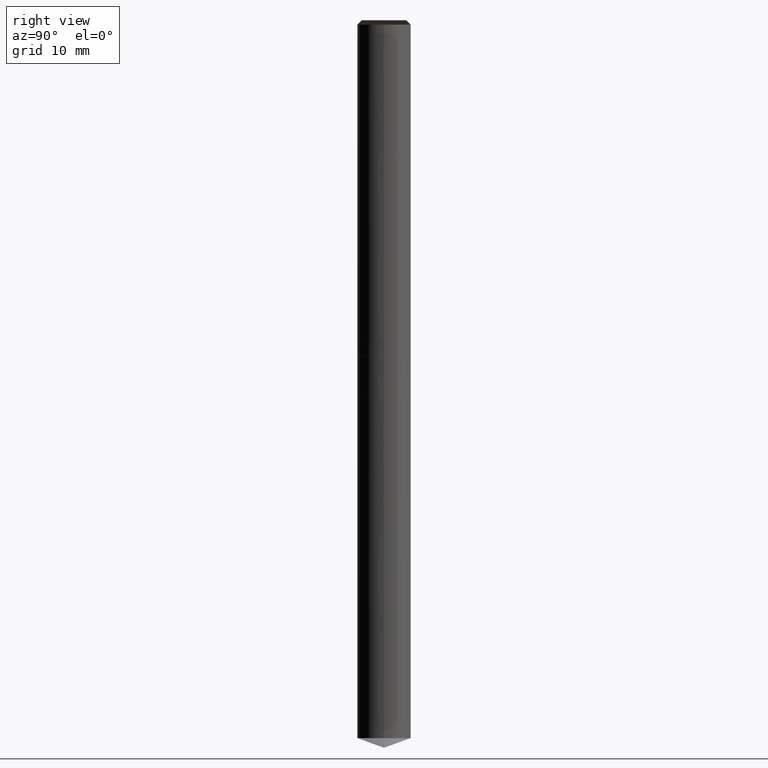
[diagram: clean part render]
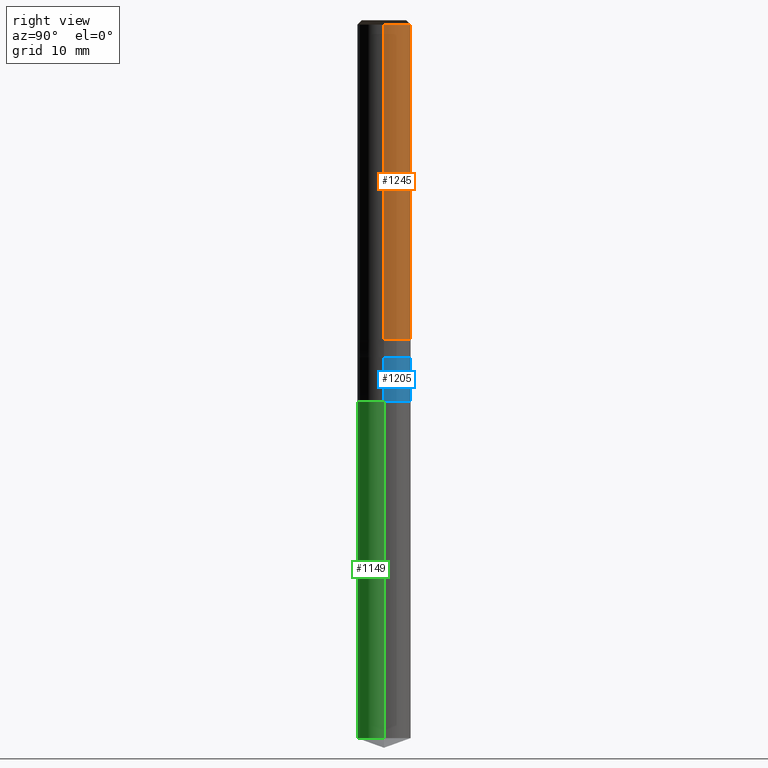
[diagram: same view with three faces highlighted in distinct colors, each labeled with its STEP entity id]
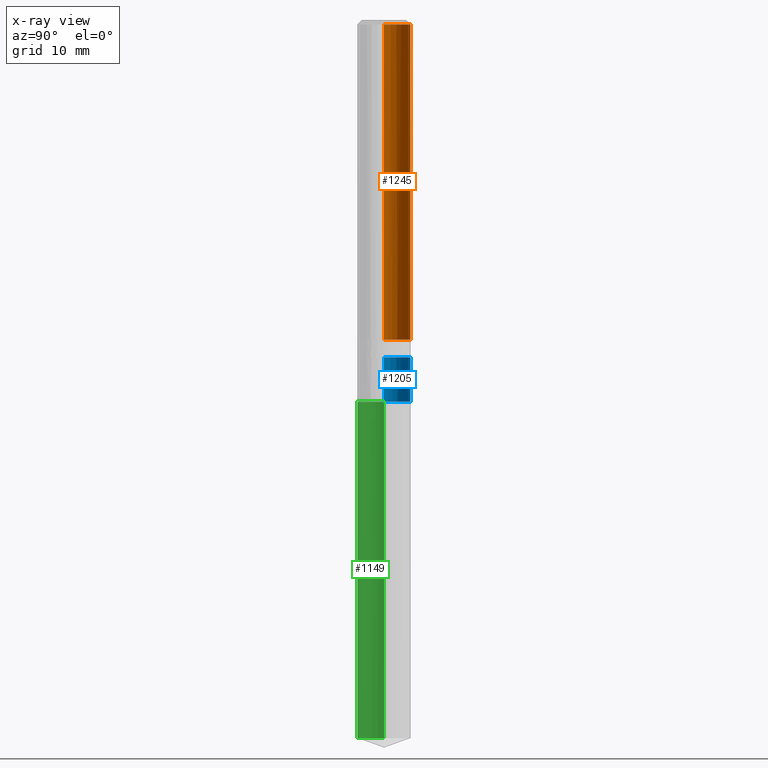
[diagram: x-ray of the same camera — body ghosted, the three highlighted faces saturated]
A machine part, right view with three faces highlighted in distinct colors.
The next image is the same camera in x-ray (body ghosted, the three faces saturated) — at least one of them is partly hidden behind the body in this view.
Their STEP definitions:

[orange] entity #1245 — the highlighted face is a freeform B-spline surface patch.
#1029=CARTESIAN_POINT('',(3.0,0.0,0.0));
#1030=CARTESIAN_POINT('',(3.0,3.0,0.0));
#1031=CARTESIAN_POINT('',(0.0,3.0,0.0));
#1032=CARTESIAN_POINT('',(-3.0,3.0,0.0));
#1033=CARTESIAN_POINT('',(-3.0,0.0,0.0));
#1034=CARTESIAN_POINT('',(3.0,0.0,35.5));
#1035=CARTESIAN_POINT('',(3.0,3.0,35.5));
#1036=CARTESIAN_POINT('',(0.0,3.0,35.5));
#1037=CARTESIAN_POINT('',(-3.0,3.0,35.5));
#1038=CARTESIAN_POINT('',(-3.0,0.0,35.5));
#1226=(
BOUNDED_SURFACE()
B_SPLINE_SURFACE(1,2,(
(#1029,#1030,#1031,#1032,#1033),
(#1034,#1035,#1036,#1037,#1038)
), .UNSPECIFIED.,.F.,.F.,.F.)
B_SPLINE_SURFACE_WITH_KNOTS((2,2),(3,2,3),(
0.0,1.0),(
0.0,0.5,1.0), .UNSPECIFIED.)
GEOMETRIC_REPRESENTATION_ITEM()
RATIONAL_B_SPLINE_SURFACE(((1.0,0.707106781187,1.0,0.707106781187,1.0),
(1.0,0.707106781187,1.0,0.707106781187,1.0)
))
REPRESENTATION_ITEM('')
SURFACE()
);
#1227=(
BOUNDED_CURVE()
B_SPLINE_CURVE(2,(#1033,#1032,#1031,#1030,#1029),.UNSPECIFIED.,.F.,.F.)
B_SPLINE_CURVE_WITH_KNOTS((3,2,3),
(0.0,0.5,1.0),.UNSPECIFIED.)
CURVE()
GEOMETRIC_REPRESENTATION_ITEM()
RATIONAL_B_SPLINE_CURVE((1.0,0.707106781187,1.0,0.707106781187,1.0))
REPRESENTATION_ITEM('')
);
#1228=(
BOUNDED_CURVE()
B_SPLINE_CURVE(1,(#1029,#1034),.UNSPECIFIED.,.F.,.F.)
B_SPLINE_CURVE_WITH_KNOTS((2,2),
(0.0,1.0),.UNSPECIFIED.)
CURVE()
GEOMETRIC_REPRESENTATION_ITEM()
RATIONAL_B_SPLINE_CURVE((1.0,1.0))
REPRESENTATION_ITEM('')
);
#1229=(
BOUNDED_CURVE()
B_SPLINE_CURVE(2,(#1034,#1035,#1036,#1037,#1038),.UNSPECIFIED.,.F.,.F.)
B_SPLINE_CURVE_WITH_KNOTS((3,2,3),
(0.0,0.5,1.0),.UNSPECIFIED.)
CURVE()
GEOMETRIC_REPRESENTATION_ITEM()
RATIONAL_B_SPLINE_CURVE((1.0,0.707106781187,1.0,0.707106781187,1.0))
REPRESENTATION_ITEM('')
);
#1230=(
BOUNDED_CURVE()
B_SPLINE_CURVE(1,(#1038,#1033),.UNSPECIFIED.,.F.,.F.)
B_SPLINE_CURVE_WITH_KNOTS((2,2),
(0.0,1.0),.UNSPECIFIED.)
CURVE()
GEOMETRIC_REPRESENTATION_ITEM()
RATIONAL_B_SPLINE_CURVE((1.0,1.0))
REPRESENTATION_ITEM('')
);
#1231=VERTEX_POINT('',#1029);
#1232=VERTEX_POINT('',#1033);
#1233=VERTEX_POINT('',#1034);
#1234=VERTEX_POINT('',#1038);
#1235=EDGE_CURVE('',#1232,#1231,#1227,.T.);
#1236=EDGE_CURVE('',#1231,#1233,#1228,.T.);
#1237=EDGE_CURVE('',#1233,#1234,#1229,.T.);
#1238=EDGE_CURVE('',#1234,#1232,#1230,.T.);
#1239=ORIENTED_EDGE('',*,*,#1235,.T.);
#1240=ORIENTED_EDGE('',*,*,#1236,.T.);
#1241=ORIENTED_EDGE('',*,*,#1237,.T.);
#1242=ORIENTED_EDGE('',*,*,#1238,.T.);
#1243=EDGE_LOOP('',(#1239,#1240,#1241,#1242));
#1244=FACE_OUTER_BOUND('',#1243,.T.);
#1245=ADVANCED_FACE('',(#1244),#1226,.T.);

[blue] entity #1205 — the highlighted face is a freeform B-spline surface patch.
#1012=CARTESIAN_POINT('',(3.0,0.0,-7.0));
#1013=CARTESIAN_POINT('',(3.0,3.0,-7.0));
#1014=CARTESIAN_POINT('',(0.0,3.0,-7.0));
#1015=CARTESIAN_POINT('',(-3.0,3.0,-7.0));
#1016=CARTESIAN_POINT('',(-3.0,0.0,-7.0));
#1024=CARTESIAN_POINT('',(3.0,0.0,-2.0));
#1025=CARTESIAN_POINT('',(3.0,3.0,-2.0));
#1026=CARTESIAN_POINT('',(0.0,3.0,-2.0));
#1027=CARTESIAN_POINT('',(-3.0,3.0,-2.0));
#1028=CARTESIAN_POINT('',(-3.0,0.0,-2.0));
#1186=(
BOUNDED_SURFACE()
B_SPLINE_SURFACE(1,2,(
(#1012,#1013,#1014,#1015,#1016),
(#1024,#1025,#1026,#1027,#1028)
), .UNSPECIFIED.,.F.,.F.,.F.)
B_SPLINE_SURFACE_WITH_KNOTS((2,2),(3,2,3),(
0.0,1.0),(
0.0,0.5,1.0), .UNSPECIFIED.)
GEOMETRIC_REPRESENTATION_ITEM()
RATIONAL_B_SPLINE_SURFACE(((1.0,0.707106781187,1.0,0.707106781187,1.0),
(1.0,0.707106781187,1.0,0.707106781187,1.0)
))
REPRESENTATION_ITEM('')
SURFACE()
);
#1187=(
BOUNDED_CURVE()
B_SPLINE_CURVE(2,(#1016,#1015,#1014,#1013,#1012),.UNSPECIFIED.,.F.,.F.)
B_SPLINE_CURVE_WITH_KNOTS((3,2,3),
(0.0,0.5,1.0),.UNSPECIFIED.)
CURVE()
GEOMETRIC_REPRESENTATION_ITEM()
RATIONAL_B_SPLINE_CURVE((1.0,0.707106781187,1.0,0.707106781187,1.0))
REPRESENTATION_ITEM('')
);
#1188=(
BOUNDED_CURVE()
B_SPLINE_CURVE(1,(#1012,#1024),.UNSPECIFIED.,.F.,.F.)
B_SPLINE_CURVE_WITH_KNOTS((2,2),
(0.0,1.0),.UNSPECIFIED.)
CURVE()
GEOMETRIC_REPRESENTATION_ITEM()
RATIONAL_B_SPLINE_CURVE((1.0,1.0))
REPRESENTATION_ITEM('')
);
#1189=(
BOUNDED_CURVE()
B_SPLINE_CURVE(2,(#1024,#1025,#1026,#1027,#1028),.UNSPECIFIED.,.F.,.F.)
B_SPLINE_CURVE_WITH_KNOTS((3,2,3),
(0.0,0.5,1.0),.UNSPECIFIED.)
CURVE()
GEOMETRIC_REPRESENTATION_ITEM()
RATIONAL_B_SPLINE_CURVE((1.0,0.707106781187,1.0,0.707106781187,1.0))
REPRESENTATION_ITEM('')
);
#1190=(
BOUNDED_CURVE()
B_SPLINE_CURVE(1,(#1028,#1016),.UNSPECIFIED.,.F.,.F.)
B_SPLINE_CURVE_WITH_KNOTS((2,2),
(0.0,1.0),.UNSPECIFIED.)
CURVE()
GEOMETRIC_REPRESENTATION_ITEM()
RATIONAL_B_SPLINE_CURVE((1.0,1.0))
REPRESENTATION_ITEM('')
);
#1191=VERTEX_POINT('',#1012);
#1192=VERTEX_POINT('',#1016);
#1193=VERTEX_POINT('',#1024);
#1194=VERTEX_POINT('',#1028);
#1195=EDGE_CURVE('',#1192,#1191,#1187,.T.);
#1196=EDGE_CURVE('',#1191,#1193,#1188,.T.);
#1197=EDGE_CURVE('',#1193,#1194,#1189,.T.);
#1198=EDGE_CURVE('',#1194,#1192,#1190,.T.);
#1199=ORIENTED_EDGE('',*,*,#1195,.T.);
#1200=ORIENTED_EDGE('',*,*,#1196,.T.);
#1201=ORIENTED_EDGE('',*,*,#1197,.T.);
#1202=ORIENTED_EDGE('',*,*,#1198,.T.);
#1203=EDGE_LOOP('',(#1199,#1200,#1201,#1202));
#1204=FACE_OUTER_BOUND('',#1203,.T.);
#1205=ADVANCED_FACE('',(#1204),#1186,.T.);

[green] entity #1149 — the highlighted face is a freeform B-spline surface patch.
#1007=CARTESIAN_POINT('',(3.0,0.0,-44.908089297201));
#1011=CARTESIAN_POINT('',(-3.0,0.0,-44.908089297201));
#1012=CARTESIAN_POINT('',(3.0,0.0,-7.0));
#1016=CARTESIAN_POINT('',(-3.0,0.0,-7.0));
#1018=CARTESIAN_POINT('',(-3.0,-3.0,-44.908089297201));
#1019=CARTESIAN_POINT('',(0.0,-3.0,-44.908089297201));
#1020=CARTESIAN_POINT('',(3.0,-3.0,-44.908089297201));
#1021=CARTESIAN_POINT('',(-3.0,-3.0,-7.0));
#1022=CARTESIAN_POINT('',(0.0,-3.0,-7.0));
#1023=CARTESIAN_POINT('',(3.0,-3.0,-7.0));
#1130=(
BOUNDED_SURFACE()
B_SPLINE_SURFACE(1,2,(
(#1011,#1018,#1019,#1020,#1007),
(#1016,#1021,#1022,#1023,#1012)
), .UNSPECIFIED.,.F.,.F.,.F.)
B_SPLINE_SURFACE_WITH_KNOTS((2,2),(3,2,3),(
0.0,1.0),(
0.0,0.5,1.0), .UNSPECIFIED.)
GEOMETRIC_REPRESENTATION_ITEM()
RATIONAL_B_SPLINE_SURFACE(((1.0,0.707106781187,1.0,0.707106781187,1.0),
(1.0,0.707106781187,1.0,0.707106781187,1.0)
))
REPRESENTATION_ITEM('')
SURFACE()
);
#1131=(
BOUNDED_CURVE()
B_SPLINE_CURVE(2,(#1007,#1020,#1019,#1018,#1011),.UNSPECIFIED.,.F.,.F.)
B_SPLINE_CURVE_WITH_KNOTS((3,2,3),
(0.0,0.5,1.0),.UNSPECIFIED.)
CURVE()
GEOMETRIC_REPRESENTATION_ITEM()
RATIONAL_B_SPLINE_CURVE((1.0,0.707106781187,1.0,0.707106781187,1.0))
REPRESENTATION_ITEM('')
);
#1132=(
BOUNDED_CURVE()
B_SPLINE_CURVE(1,(#1011,#1016),.UNSPECIFIED.,.F.,.F.)
B_SPLINE_CURVE_WITH_KNOTS((2,2),
(0.0,1.0),.UNSPECIFIED.)
CURVE()
GEOMETRIC_REPRESENTATION_ITEM()
RATIONAL_B_SPLINE_CURVE((1.0,1.0))
REPRESENTATION_ITEM('')
);
#1133=(
BOUNDED_CURVE()
B_SPLINE_CURVE(2,(#1016,#1021,#1022,#1023,#1012),.UNSPECIFIED.,.F.,.F.)
B_SPLINE_CURVE_WITH_KNOTS((3,2,3),
(0.0,0.5,1.0),.UNSPECIFIED.)
CURVE()
GEOMETRIC_REPRESENTATION_ITEM()
RATIONAL_B_SPLINE_CURVE((1.0,0.707106781187,1.0,0.707106781187,1.0))
REPRESENTATION_ITEM('')
);
#1134=(
BOUNDED_CURVE()
B_SPLINE_CURVE(1,(#1012,#1007),.UNSPECIFIED.,.F.,.F.)
B_SPLINE_CURVE_WITH_KNOTS((2,2),
(0.0,1.0),.UNSPECIFIED.)
CURVE()
GEOMETRIC_REPRESENTATION_ITEM()
RATIONAL_B_SPLINE_CURVE((1.0,1.0))
REPRESENTATION_ITEM('')
);
#1135=VERTEX_POINT('',#1007);
#1136=VERTEX_POINT('',#1011);
#1137=VERTEX_POINT('',#1012);
#1138=VERTEX_POINT('',#1016);
#1139=EDGE_CURVE('',#1135,#1136,#1131,.T.);
#1140=EDGE_CURVE('',#1136,#1138,#1132,.T.);
#1141=EDGE_CURVE('',#1138,#1137,#1133,.T.);
#1142=EDGE_CURVE('',#1137,#1135,#1134,.T.);
#1143=ORIENTED_EDGE('',*,*,#1139,.T.);
#1144=ORIENTED_EDGE('',*,*,#1140,.T.);
#1145=ORIENTED_EDGE('',*,*,#1141,.T.);
#1146=ORIENTED_EDGE('',*,*,#1142,.T.);
#1147=EDGE_LOOP('',(#1143,#1144,#1145,#1146));
#1148=FACE_OUTER_BOUND('',#1147,.T.);
#1149=ADVANCED_FACE('',(#1148),#1130,.T.);